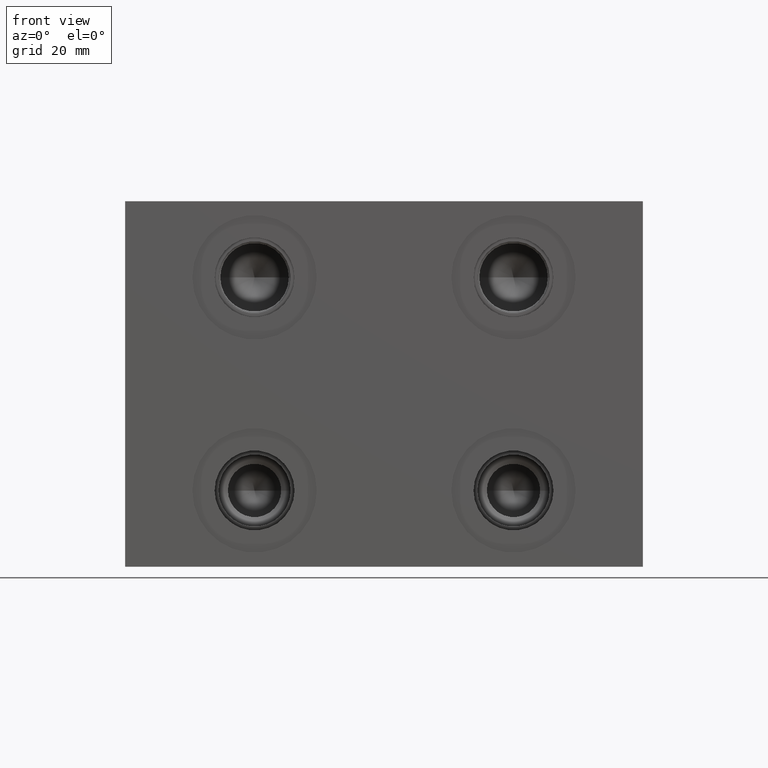
[diagram: clean part render]
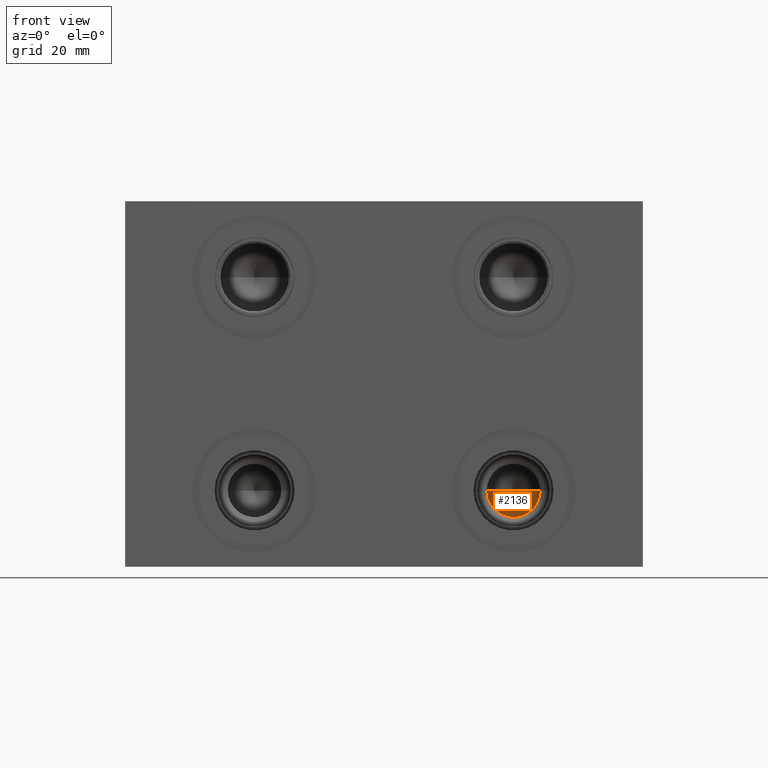
[diagram: same view with one face highlighted and labeled with its STEP entity id]
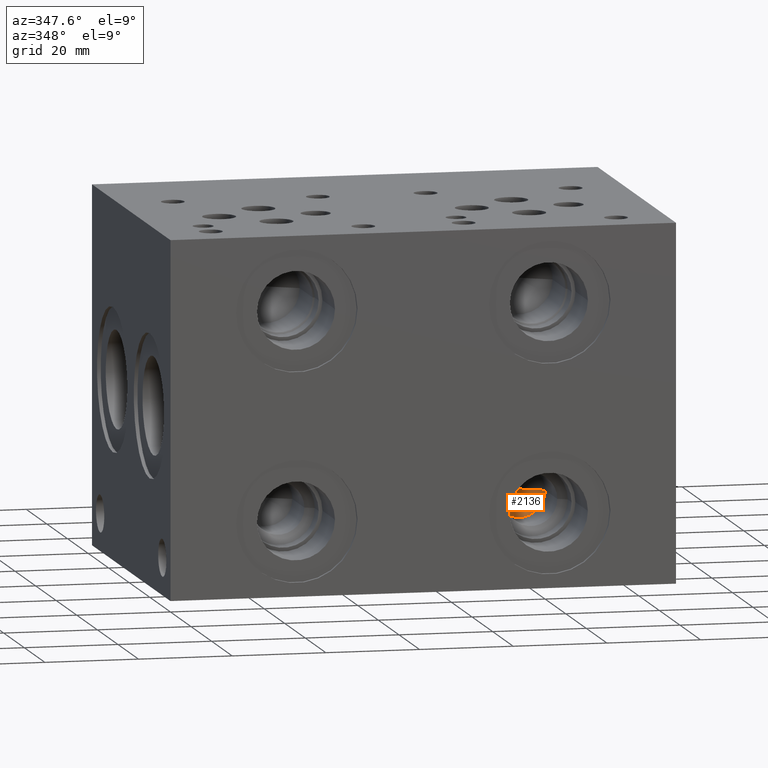
[diagram: same view with one face highlighted and labeled with its STEP entity id]
A machine part, front view. The second image highlights one B-rep face of the part: STEP entity #2136.
A second angle (auxiliary view) of the same face is appended — the face is thin or edge-on in the first view.
In plain terms, the highlighted conical surface has half-angle 60 deg.
Its self-contained STEP definition (entity closure, byte-faithful):
#2093=CARTESIAN_POINT('',(3.406999999999999,1.164300358991730,0.625000000000000));
#2094=VERTEX_POINT('',#2093);
#2095=CARTESIAN_POINT('',(2.968999999999999,1.164300358991730,0.625000000000000));
#2096=VERTEX_POINT('',#2095);
#2097=CARTESIAN_POINT('',(3.188000000000000,1.164300358991730,0.625000000000000));
#2098=DIRECTION('',(0.0,1.0,0.0));
#2099=DIRECTION('',(-1.0,0.0,0.0));
#2100=AXIS2_PLACEMENT_3D('',#2097,#2098,#2099);
#2101=CIRCLE('',#2100,0.219000000000000);
#2102=EDGE_CURVE('',#2094,#2096,#2101,.T.);
#2114=CARTESIAN_POINT('',(3.188000000000000,0.713389798754632,0.625000000000000));
#2115=DIRECTION('',(0.0,-1.0,0.0));
#2116=DIRECTION('',(-1.0,0.0,0.0));
#2117=AXIS2_PLACEMENT_3D('',#2114,#2115,#2116);
#2118=CONICAL_SURFACE('',#2117,1.000000000000000,59.999999999999993);
#2119=CARTESIAN_POINT('',(3.188000000000000,1.290740067944250,0.625000000000000));
#2120=VERTEX_POINT('',#2119);
#2121=CARTESIAN_POINT('',(2.968999999999999,1.164300358991730,0.625000000000000));
#2122=DIRECTION('',(0.866025403784435,0.500000000000007,0.0));
#2123=VECTOR('',#2122,0.252879417905052);
#2124=LINE('',#2121,#2123);
#2125=EDGE_CURVE('',#2096,#2120,#2124,.T.);
#2126=ORIENTED_EDGE('',*,*,#2125,.F.);
#2127=ORIENTED_EDGE('',*,*,#2102,.F.);
#2128=CARTESIAN_POINT('',(3.188000000000000,1.290740067944250,0.625000000000000));
#2129=DIRECTION('',(0.866025403784435,-0.500000000000007,0.0));
#2130=VECTOR('',#2129,0.252879417905051);
#2131=LINE('',#2128,#2130);
#2132=EDGE_CURVE('',#2120,#2094,#2131,.T.);
#2133=ORIENTED_EDGE('',*,*,#2132,.F.);
#2134=EDGE_LOOP('',(#2126,#2127,#2133));
#2135=FACE_OUTER_BOUND('',#2134,.T.);
#2136=ADVANCED_FACE('',(#2135),#2118,.F.);